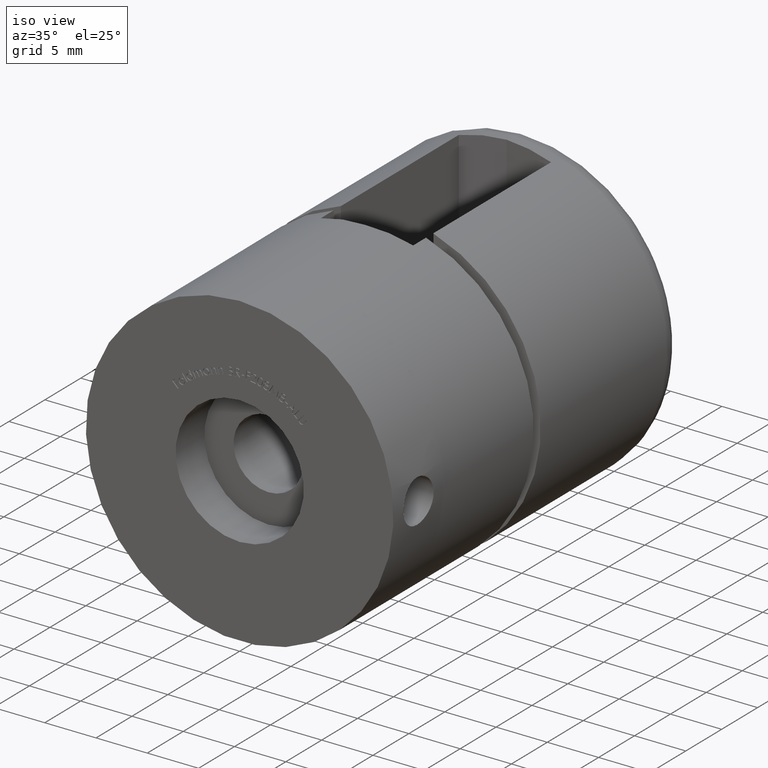
[diagram: clean part render]
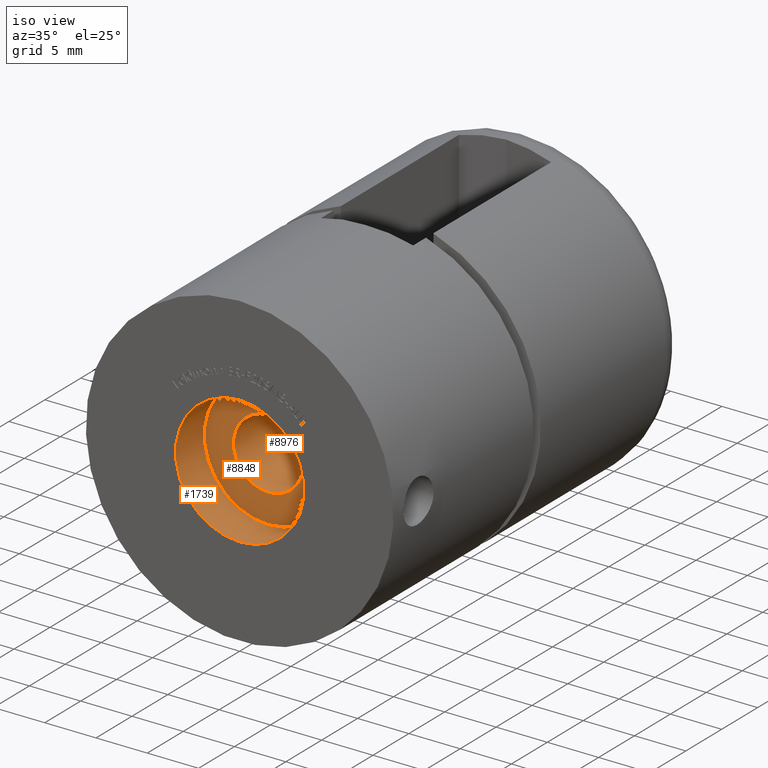
[diagram: same view with one multi-face feature highlighted, each face labeled with its STEP entity id]
A machine part, iso view. The highlighted faces form ONE feature: a stepped (counterbored) hole: 2 coaxial cylindrical walls of radii 3.4 -> 6.25 mm joined by 1 annular planar shoulder face(s). The faces share edges in the B-rep.
Their STEP definitions:
[1] entity #1739 (Cylinder):
#191 = DIRECTION ( 'NONE',  ( 0.0000000000000000000, 0.0000000000000000000, -1.000000000000000000 ) ) ;
#421 = AXIS2_PLACEMENT_3D ( 'NONE', #6561, #8211, #191 ) ;
#787 = ORIENTED_EDGE ( 'NONE', *, *, #2512, .T. ) ;
#1739 = ADVANCED_FACE ( 'NONE', ( #13522, #4960 ), #10385, .F. ) ;
#2512 = EDGE_CURVE ( 'NONE', #16847, #16847, #16713, .T. ) ;
#3072 = DIRECTION ( 'NONE',  ( 0.0000000000000000000, 0.0000000000000000000, -1.000000000000000000 ) ) ;
#3384 = CIRCLE ( 'NONE', #11734, 6.250000000000000000 ) ;
#3552 = CARTESIAN_POINT ( 'NONE',  ( 0.0000000000000000000, 0.0000000000000000000, 0.0000000000000000000 ) ) ;
#4376 = DIRECTION ( 'NONE',  ( 0.0000000000000000000, -1.000000000000000000, 0.0000000000000000000 ) ) ;
#4468 = AXIS2_PLACEMENT_3D ( 'NONE', #3552, #8851, #7712 ) ;
#4960 = FACE_OUTER_BOUND ( 'NONE', #15813, .T. ) ;
#5457 = CARTESIAN_POINT ( 'NONE',  ( 0.0000000000000000000, 0.0000000000000000000, -6.250000000000000000 ) ) ;
#6185 = ORIENTED_EDGE ( 'NONE', *, *, #12157, .F. ) ;
#6561 = CARTESIAN_POINT ( 'NONE',  ( 0.0000000000000000000, 4.000000000000000000, 0.0000000000000000000 ) ) ;
#7712 = DIRECTION ( 'NONE',  ( 0.0000000000000000000, 0.0000000000000000000, -1.000000000000000000 ) ) ;
#7851 = VERTEX_POINT ( 'NONE', #16555 ) ;
#8211 = DIRECTION ( 'NONE',  ( -0.0000000000000000000, -1.000000000000000000, -0.0000000000000000000 ) ) ;
#8227 = EDGE_LOOP ( 'NONE', ( #6185 ) ) ;
#8851 = DIRECTION ( 'NONE',  ( 0.0000000000000000000, -1.000000000000000000, 0.0000000000000000000 ) ) ;
#10385 = CYLINDRICAL_SURFACE ( 'NONE', #421, 6.250000000000000000 ) ;
#11734 = AXIS2_PLACEMENT_3D ( 'NONE', #12488, #4376, #3072 ) ;
#12157 = EDGE_CURVE ( 'NONE', #7851, #7851, #3384, .T. ) ;
#12488 = CARTESIAN_POINT ( 'NONE',  ( 0.0000000000000000000, 4.000000000000000000, 0.0000000000000000000 ) ) ;
#13522 = FACE_OUTER_BOUND ( 'NONE', #8227, .T. ) ;
#15813 = EDGE_LOOP ( 'NONE', ( #787 ) ) ;
#16555 = CARTESIAN_POINT ( 'NONE',  ( 0.0000000000000000000, 4.000000000000000000, -6.250000000000000000 ) ) ;
#16713 = CIRCLE ( 'NONE', #4468, 6.250000000000000000 ) ;
#16847 = VERTEX_POINT ( 'NONE', #5457 ) ;
[2] entity #8976 (Cylinder):
#242 = EDGE_CURVE ( 'NONE', #6579, #6579, #6642, .T. ) ;
#293 = CARTESIAN_POINT ( 'NONE',  ( 0.0000000000000000000, 4.000000000000000000, -3.399999999999998600 ) ) ;
#618 = CYLINDRICAL_SURFACE ( 'NONE', #16534, 3.399999999999997700 ) ;
#747 = VERTEX_POINT ( 'NONE', #293 ) ;
#833 = FACE_OUTER_BOUND ( 'NONE', #1479, .T. ) ;
#1479 = EDGE_LOOP ( 'NONE', ( #14316 ) ) ;
#1962 = CARTESIAN_POINT ( 'NONE',  ( 0.0000000000000000000, 13.15000000000000000, 3.399999999999997700 ) ) ;
#2411 = DIRECTION ( 'NONE',  ( 0.0000000000000000000, 0.0000000000000000000, 1.000000000000000000 ) ) ;
#2607 = EDGE_CURVE ( 'NONE', #747, #747, #11680, .T. ) ;
#3338 = DIRECTION ( 'NONE',  ( -0.0000000000000000000, -1.000000000000000000, -0.0000000000000000000 ) ) ;
#3861 = EDGE_LOOP ( 'NONE', ( #10501 ) ) ;
#4004 = DIRECTION ( 'NONE',  ( 0.0000000000000000000, 0.0000000000000000000, -1.000000000000000000 ) ) ;
#6579 = VERTEX_POINT ( 'NONE', #1962 ) ;
#6642 = CIRCLE ( 'NONE', #15208, 3.399999999999997700 ) ;
#6809 = CARTESIAN_POINT ( 'NONE',  ( 0.0000000000000000000, 4.000000000000000000, 0.0000000000000000000 ) ) ;
#8976 = ADVANCED_FACE ( 'NONE', ( #833, #9602 ), #618, .F. ) ;
#9602 = FACE_OUTER_BOUND ( 'NONE', #3861, .T. ) ;
#10124 = DIRECTION ( 'NONE',  ( 0.0000000000000000000, 0.0000000000000000000, -1.000000000000000000 ) ) ;
#10501 = ORIENTED_EDGE ( 'NONE', *, *, #242, .F. ) ;
#11680 = CIRCLE ( 'NONE', #15581, 3.399999999999998600 ) ;
#14288 = CARTESIAN_POINT ( 'NONE',  ( 0.0000000000000000000, 13.15000000000000000, 0.0000000000000000000 ) ) ;
#14316 = ORIENTED_EDGE ( 'NONE', *, *, #2607, .T. ) ;
#15208 = AXIS2_PLACEMENT_3D ( 'NONE', #14288, #15838, #2411 ) ;
#15581 = AXIS2_PLACEMENT_3D ( 'NONE', #6809, #16169, #4004 ) ;
#15838 = DIRECTION ( 'NONE',  ( 0.0000000000000000000, -1.000000000000000000, 0.0000000000000000000 ) ) ;
#16169 = DIRECTION ( 'NONE',  ( -0.0000000000000000000, -1.000000000000000000, -0.0000000000000000000 ) ) ;
#16534 = AXIS2_PLACEMENT_3D ( 'NONE', #16788, #3338, #10124 ) ;
#16788 = CARTESIAN_POINT ( 'NONE',  ( 0.0000000000000000000, 4.000000000000000000, -0.0000000000000000000 ) ) ;
[3] entity #8848 (Plane):
#293 = CARTESIAN_POINT ( 'NONE',  ( 0.0000000000000000000, 4.000000000000000000, -3.399999999999998600 ) ) ;
#530 = PLANE ( 'NONE',  #9064 ) ;
#747 = VERTEX_POINT ( 'NONE', #293 ) ;
#1152 = FACE_BOUND ( 'NONE', #9417, .T. ) ;
#2607 = EDGE_CURVE ( 'NONE', #747, #747, #11680, .T. ) ;
#3072 = DIRECTION ( 'NONE',  ( 0.0000000000000000000, 0.0000000000000000000, -1.000000000000000000 ) ) ;
#3384 = CIRCLE ( 'NONE', #11734, 6.250000000000000000 ) ;
#4004 = DIRECTION ( 'NONE',  ( 0.0000000000000000000, 0.0000000000000000000, -1.000000000000000000 ) ) ;
#4376 = DIRECTION ( 'NONE',  ( 0.0000000000000000000, -1.000000000000000000, 0.0000000000000000000 ) ) ;
#4388 = DIRECTION ( 'NONE',  ( 0.0000000000000000000, -1.000000000000000000, 0.0000000000000000000 ) ) ;
#6809 = CARTESIAN_POINT ( 'NONE',  ( 0.0000000000000000000, 4.000000000000000000, 0.0000000000000000000 ) ) ;
#7851 = VERTEX_POINT ( 'NONE', #16555 ) ;
#8848 = ADVANCED_FACE ( 'NONE', ( #1152, #11866 ), #530, .T. ) ;
#9064 = AXIS2_PLACEMENT_3D ( 'NONE', #12376, #4388, #13753 ) ;
#9417 = EDGE_LOOP ( 'NONE', ( #16514 ) ) ;
#9691 = ORIENTED_EDGE ( 'NONE', *, *, #12157, .T. ) ;
#11680 = CIRCLE ( 'NONE', #15581, 3.399999999999998600 ) ;
#11734 = AXIS2_PLACEMENT_3D ( 'NONE', #12488, #4376, #3072 ) ;
#11866 = FACE_OUTER_BOUND ( 'NONE', #16831, .T. ) ;
#12157 = EDGE_CURVE ( 'NONE', #7851, #7851, #3384, .T. ) ;
#12376 = CARTESIAN_POINT ( 'NONE',  ( 0.0000000000000000000, 4.000000000000000000, 0.0000000000000000000 ) ) ;
#12488 = CARTESIAN_POINT ( 'NONE',  ( 0.0000000000000000000, 4.000000000000000000, 0.0000000000000000000 ) ) ;
#13753 = DIRECTION ( 'NONE',  ( 0.0000000000000000000, -0.0000000000000000000, -1.000000000000000000 ) ) ;
#15581 = AXIS2_PLACEMENT_3D ( 'NONE', #6809, #16169, #4004 ) ;
#16169 = DIRECTION ( 'NONE',  ( -0.0000000000000000000, -1.000000000000000000, -0.0000000000000000000 ) ) ;
#16514 = ORIENTED_EDGE ( 'NONE', *, *, #2607, .F. ) ;
#16555 = CARTESIAN_POINT ( 'NONE',  ( 0.0000000000000000000, 4.000000000000000000, -6.250000000000000000 ) ) ;
#16831 = EDGE_LOOP ( 'NONE', ( #9691 ) ) ;